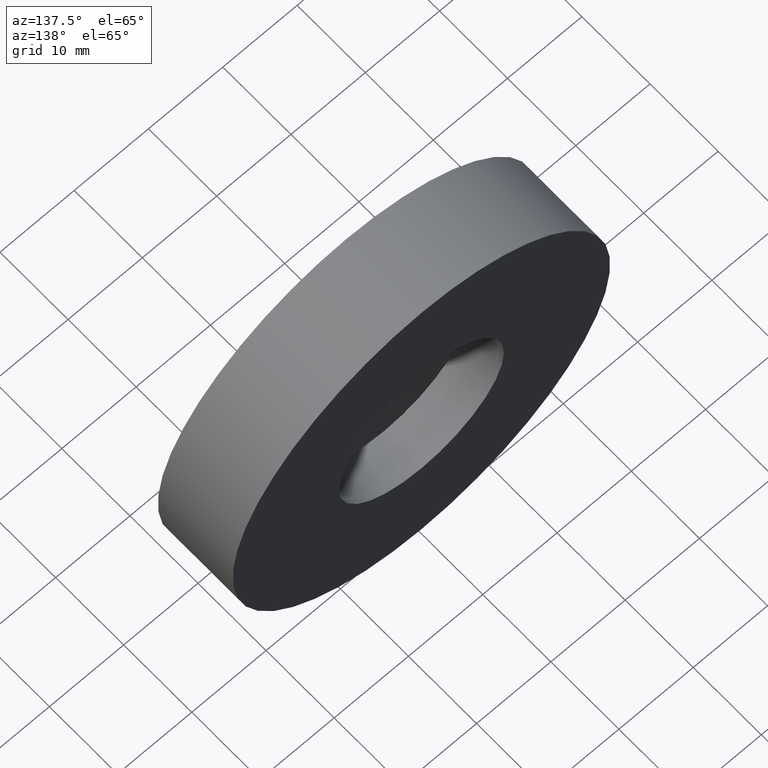
[diagram: clean part render]
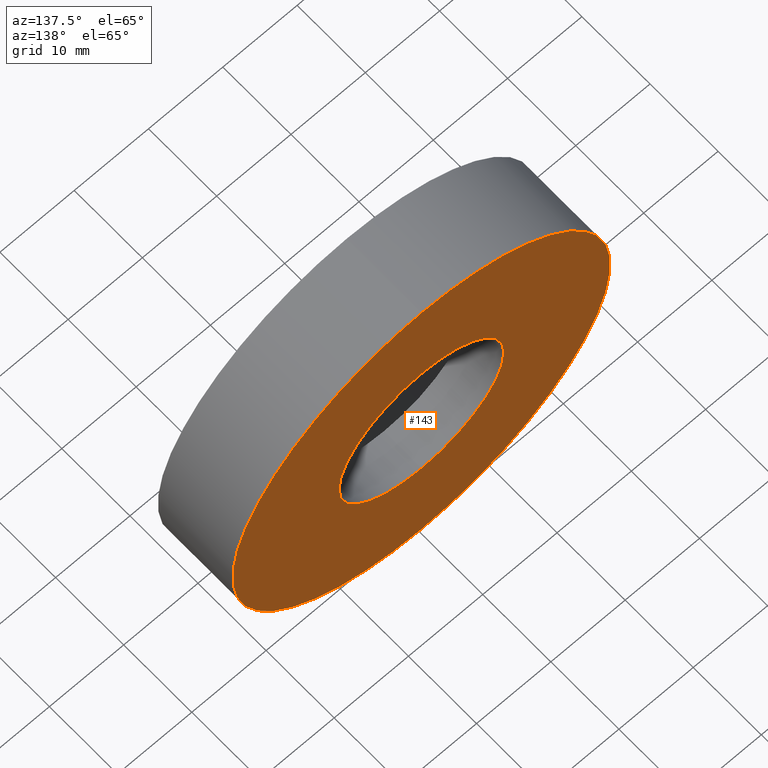
[diagram: same view with one face highlighted and labeled with its STEP entity id]
A machine part, auxiliary view. The second image highlights one B-rep face of the part: STEP entity #143.
In plain terms, the highlighted planar face has unit normal (0, -1, 0).
Its self-contained STEP definition (entity closure, byte-faithful):
#18 = DIRECTION ( 'NONE',  ( 0.0000000000000000000, 0.0000000000000000000, 1.000000000000000000 ) ) ;
#19 = CIRCLE ( 'NONE', #52, 11.10000000000000700 ) ;
#28 = CARTESIAN_POINT ( 'NONE',  ( 3.110602869834277300E-015, 10.99999999999999600, -25.40000000000000200 ) ) ;
#32 = PLANE ( 'NONE',  #56 ) ;
#34 = VERTEX_POINT ( 'NONE', #28 ) ;
#38 = AXIS2_PLACEMENT_3D ( 'NONE', #310, #309, #188 ) ;
#41 = DIRECTION ( 'NONE',  ( 0.0000000000000000000, 0.0000000000000000000, 1.000000000000000000 ) ) ;
#48 = DIRECTION ( 'NONE',  ( -0.0000000000000000000, 1.000000000000000000, -0.0000000000000000000 ) ) ;
#50 = CARTESIAN_POINT ( 'NONE',  ( 1.359357947053563100E-015, 10.99999999999999600, -11.10000000000000700 ) ) ;
#51 = CARTESIAN_POINT ( 'NONE',  ( 0.0000000000000000000, 10.99999999999999600, 0.0000000000000000000 ) ) ;
#52 = AXIS2_PLACEMENT_3D ( 'NONE', #51, #399, #18 ) ;
#56 = AXIS2_PLACEMENT_3D ( 'NONE', #107, #119, #198 ) ;
#67 = CARTESIAN_POINT ( 'NONE',  ( 0.0000000000000000000, 10.99999999999999600, 0.0000000000000000000 ) ) ;
#85 = DIRECTION ( 'NONE',  ( 0.0000000000000000000, 0.0000000000000000000, 1.000000000000000000 ) ) ;
#94 = ORIENTED_EDGE ( 'NONE', *, *, #370, .T. ) ;
#102 = EDGE_LOOP ( 'NONE', ( #223, #94 ) ) ;
#103 = FACE_OUTER_BOUND ( 'NONE', #102, .T. ) ;
#106 = AXIS2_PLACEMENT_3D ( 'NONE', #67, #195, #41 ) ;
#107 = CARTESIAN_POINT ( 'NONE',  ( 11.10000000000000700, 10.99999999999999800, 0.0000000000000000000 ) ) ;
#115 = CARTESIAN_POINT ( 'NONE',  ( 0.0000000000000000000, 10.99999999999999600, 11.10000000000000700 ) ) ;
#119 = DIRECTION ( 'NONE',  ( 0.0000000000000000000, -1.000000000000000000, 0.0000000000000000000 ) ) ;
#120 = CIRCLE ( 'NONE', #106, 25.40000000000000200 ) ;
#143 = ADVANCED_FACE ( 'NONE', ( #413, #103 ), #32, .F. ) ;
#165 = EDGE_CURVE ( 'NONE', #173, #307, #416, .T. ) ;
#171 = CARTESIAN_POINT ( 'NONE',  ( 0.0000000000000000000, 10.99999999999999600, 25.40000000000000200 ) ) ;
#173 = VERTEX_POINT ( 'NONE', #115 ) ;
#179 = CARTESIAN_POINT ( 'NONE',  ( 0.0000000000000000000, 10.99999999999999600, 0.0000000000000000000 ) ) ;
#181 = CIRCLE ( 'NONE', #38, 25.40000000000000200 ) ;
#188 = DIRECTION ( 'NONE',  ( 0.0000000000000000000, 0.0000000000000000000, 1.000000000000000000 ) ) ;
#193 = EDGE_CURVE ( 'NONE', #313, #34, #120, .T. ) ;
#195 = DIRECTION ( 'NONE',  ( -0.0000000000000000000, 1.000000000000000000, -0.0000000000000000000 ) ) ;
#198 = DIRECTION ( 'NONE',  ( 0.0000000000000000000, -0.0000000000000000000, -1.000000000000000000 ) ) ;
#223 = ORIENTED_EDGE ( 'NONE', *, *, #193, .T. ) ;
#251 = EDGE_LOOP ( 'NONE', ( #330, #377 ) ) ;
#255 = AXIS2_PLACEMENT_3D ( 'NONE', #179, #48, #85 ) ;
#285 = EDGE_CURVE ( 'NONE', #307, #173, #19, .T. ) ;
#307 = VERTEX_POINT ( 'NONE', #50 ) ;
#309 = DIRECTION ( 'NONE',  ( -0.0000000000000000000, 1.000000000000000000, -0.0000000000000000000 ) ) ;
#310 = CARTESIAN_POINT ( 'NONE',  ( 0.0000000000000000000, 10.99999999999999600, 0.0000000000000000000 ) ) ;
#313 = VERTEX_POINT ( 'NONE', #171 ) ;
#330 = ORIENTED_EDGE ( 'NONE', *, *, #165, .F. ) ;
#370 = EDGE_CURVE ( 'NONE', #34, #313, #181, .T. ) ;
#377 = ORIENTED_EDGE ( 'NONE', *, *, #285, .F. ) ;
#399 = DIRECTION ( 'NONE',  ( -0.0000000000000000000, 1.000000000000000000, -0.0000000000000000000 ) ) ;
#413 = FACE_BOUND ( 'NONE', #251, .T. ) ;
#416 = CIRCLE ( 'NONE', #255, 11.10000000000000700 ) ;